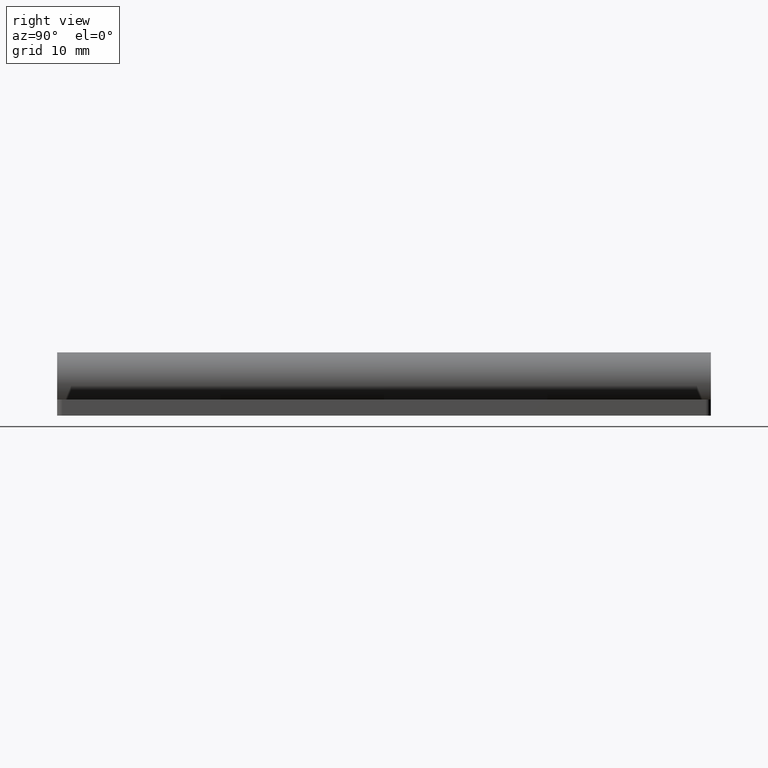
[diagram: clean part render]
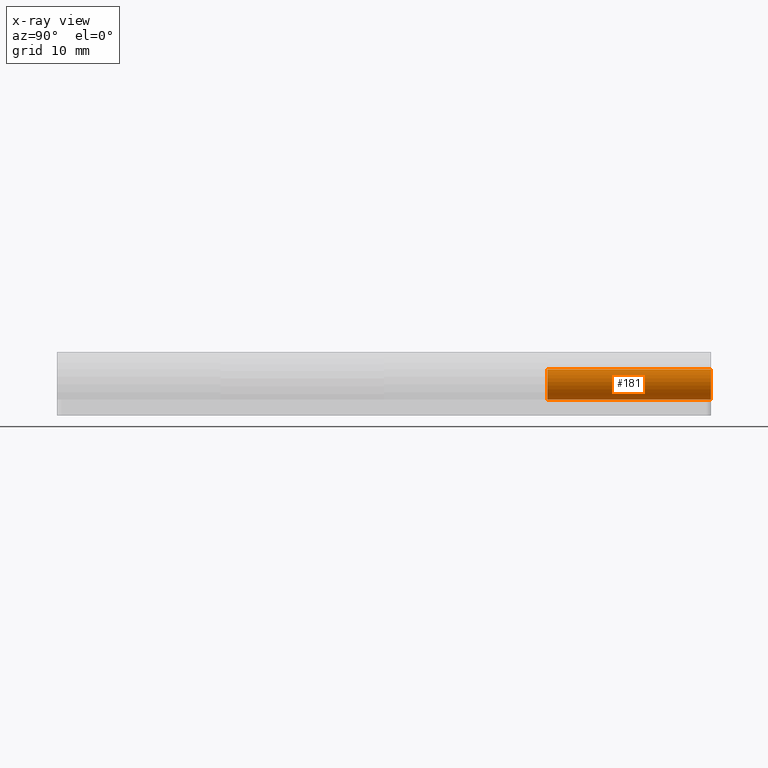
[diagram: x-ray — body ghosted, one internal face saturated and labeled with its STEP entity id]
A machine part, right view, then the same camera in x-ray: the body is ghosted and one INTERNAL B-rep face — a face not visible from any outside direction — is saturated and labeled: STEP entity #181.
In plain terms, the highlighted cylindrical surface (edge-blend (fillet) strip) has radius 1.5 mm, axis along (0, 1, 0).
Its self-contained STEP definition (entity closure, byte-faithful):
#181=ADVANCED_FACE('',(#539),#538,.F.);
#538=CYLINDRICAL_SURFACE('',#993,1.50000000000E+00);
#539=FACE_OUTER_BOUND('',#994,.T.);
#990=CARTESIAN_POINT('',(0.00000000000E+00,1.00000000000E+03,0.00000000000E+00));
#991=DIRECTION('',(-0.00000000000E+00,1.00000000000E+00,0.00000000000E+00));
#992=DIRECTION('',(-5.00000000000E-01,0.00000000000E+00,-8.66025403784E-01));
#993=AXIS2_PLACEMENT_3D('',#990,#991,#992);
#994=EDGE_LOOP('',(#1325,#1326,#1327,#1328));
#1325=ORIENTED_EDGE('',*,*,#1567,.F.);
#1326=ORIENTED_EDGE('',*,*,#1568,.F.);
#1327=ORIENTED_EDGE('',*,*,#1569,.F.);
#1328=ORIENTED_EDGE('',*,*,#1559,.T.);
#1559=EDGE_CURVE('',#2305,#2298,#2306,.T.);
#1567=EDGE_CURVE('',#2360,#2298,#2361,.T.);
#1568=EDGE_CURVE('',#2367,#2360,#2368,.T.);
#1569=EDGE_CURVE('',#2305,#2367,#2374,.T.);
#2298=VERTEX_POINT('',#3111);
#2305=VERTEX_POINT('',#3115);
#2306=LINE('',#3116,#3117);
#2360=VERTEX_POINT('',#3152);
#2361=CIRCLE('',#3156,1.50000000000E+00);
#2367=VERTEX_POINT('',#3157);
#2368=LINE('',#3158,#3159);
#2374=CIRCLE('',#3164,1.50000000000E+00);
#3111=CARTESIAN_POINT('',(2.34451548249E-12,4.87500000000E+01,-1.50000000000E+00));
#3115=CARTESIAN_POINT('',(2.34451548248E-12,6.50000000000E+01,-1.50000000000E+00));
#3116=CARTESIAN_POINT('',(2.34451548248E-12,6.50000000000E+01,-1.50000000000E+00));
#3117=VECTOR('',#3118,1.62500000000E+01);
#3118=DIRECTION('',(0.00000000000E+00,-1.00000000000E+00,0.00000000000E+00));
#3152=CARTESIAN_POINT('',(-1.31724503187E+00,4.87500000000E+01,-7.17541306129E-01));
#3153=CARTESIAN_POINT('',(0.00000000000E+00,4.87500000000E+01,0.00000000000E+00));
#3154=DIRECTION('',(-2.86051284058E-12,1.00000000000E+00,0.00000000000E+00));
#3155=DIRECTION('',(1.56337770963E-12,4.47206201307E-24,-1.00000000000E+00));
#3156=AXIS2_PLACEMENT_3D('',#3153,#3154,#3155);
#3157=CARTESIAN_POINT('',(-1.31724503187E+00,6.50000000000E+01,-7.17541306129E-01));
#3158=CARTESIAN_POINT('',(-1.31724503187E+00,6.50000000000E+01,-7.17541306129E-01));
#3159=VECTOR('',#3160,1.62500000000E+01);
#3160=DIRECTION('',(0.00000000000E+00,-1.00000000000E+00,0.00000000000E+00));
#3161=CARTESIAN_POINT('',(0.00000000000E+00,6.50000000000E+01,0.00000000000E+00));
#3162=DIRECTION('',(0.00000000000E+00,-1.00000000000E+00,0.00000000000E+00));
#3163=DIRECTION('',(-0.00000000000E+00,-0.00000000000E+00,-1.00000000000E+00));
#3164=AXIS2_PLACEMENT_3D('',#3161,#3162,#3163);